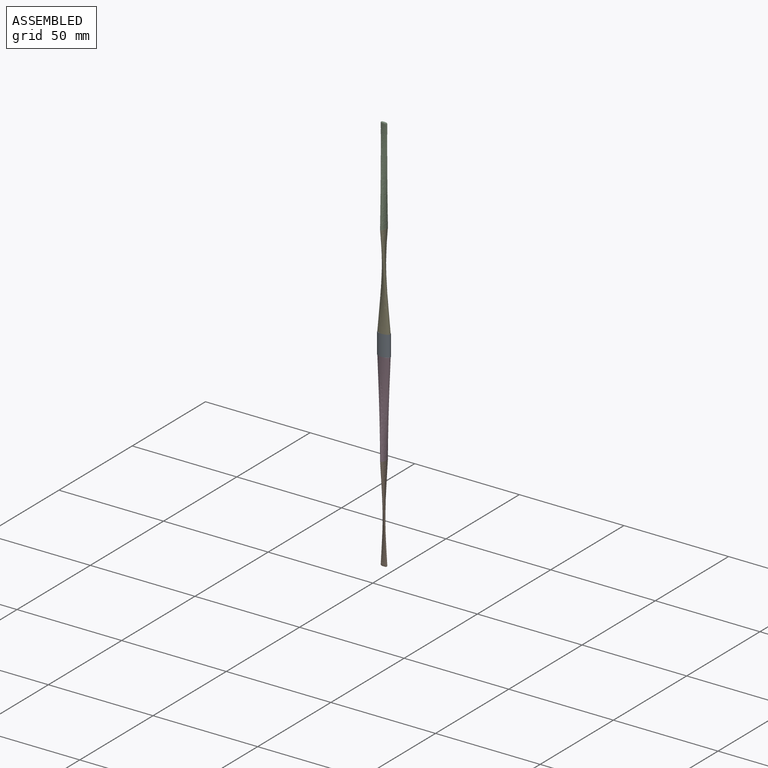
[diagram: assembled view]
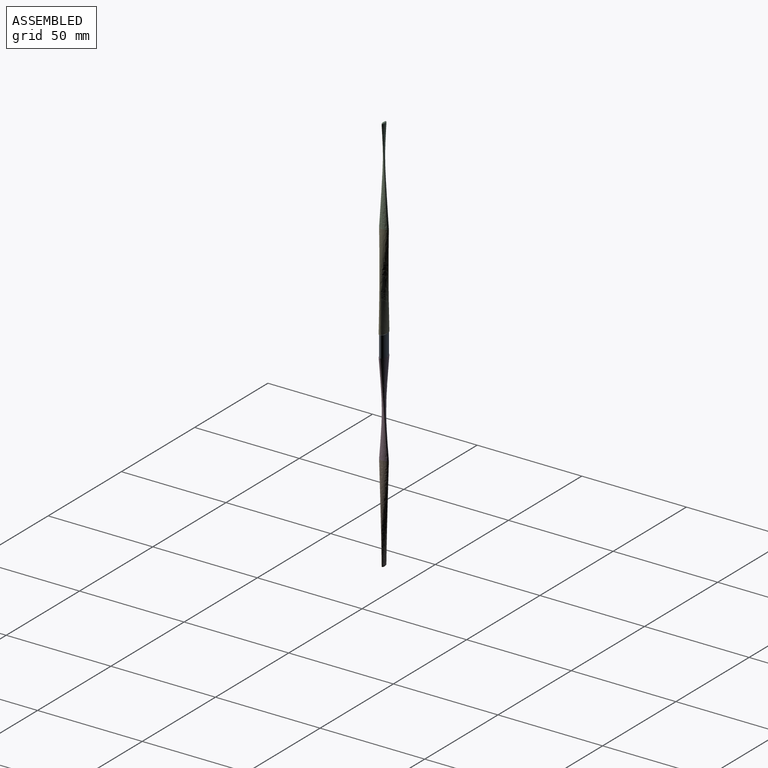
[diagram: assembled view, second angle]
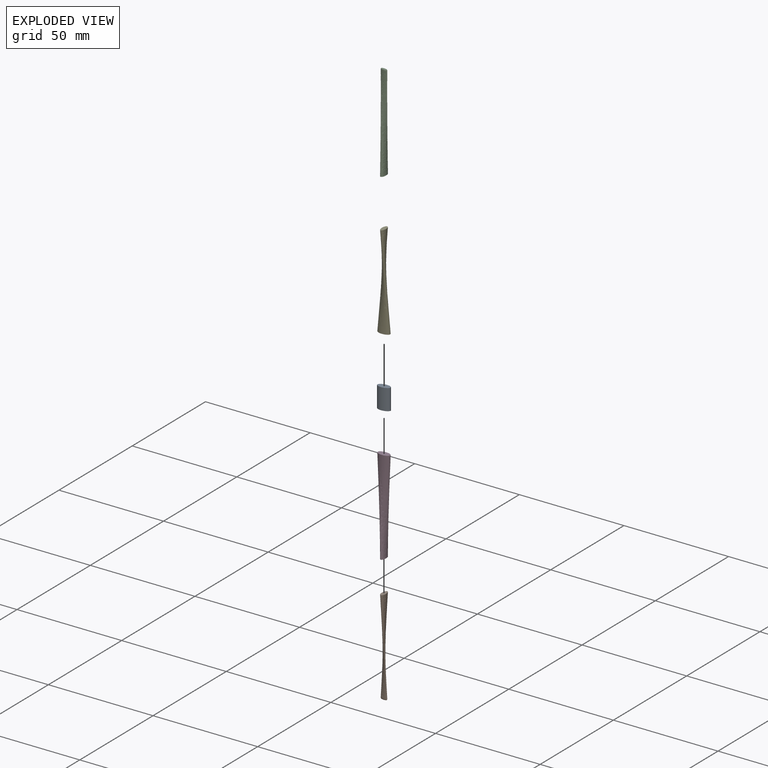
[diagram: exploded view]
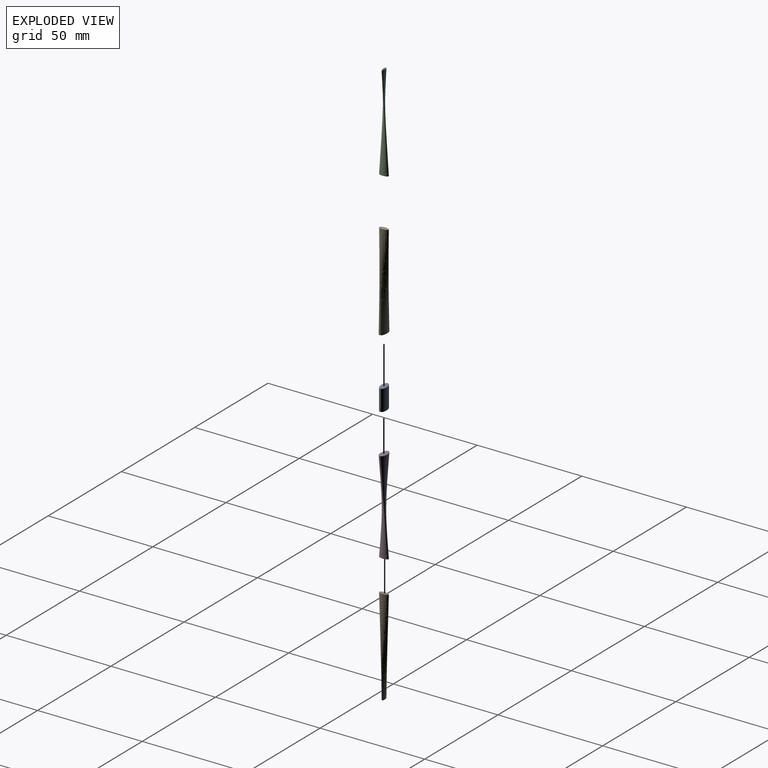
[diagram: exploded view, second angle]
ASSEMBLY  parts=5 mates=4
PART A: 3 faces, bbox 6x3x10 mm
  f0: extruded ~10x5.97mm, area 145.3mm2, adj f1,f2
  f1: plane 5.98x3.05mm, normal (0,0,1), area 14.1mm2, adj f0
  f2: plane 5.98x3.05mm, normal (0,0,-1), area 14.1mm2, adj f0
PART B: 7 faces, bbox 3x4.5x46 mm
  f0: plane 4.5x2mm, normal (0,0,-1), area 7.1mm2, adj f1
  f1: bspline ~45x4.5mm, area 318.7mm2, adj f0,f2
  f2: extruded ~3x1mm, area 3.3mm2, adj f1,f3,f4,f5,f6
  f3: bspline ~1.5x0.59mm, area 0.4mm2, adj f2,f4,f5
  f4: bspline ~2.63x0.69mm, area 0.9mm2, adj f2,f3,f6
  f5: bspline ~2.7x0.71mm, area 0.9mm2, adj f2,f3,f6
  f6: bspline ~1.5x0.59mm, area 0.4mm2, adj f2,f4,f5
PART C: same geometry as B
PART D: 3 faces, bbox 6x4.5x45 mm
  f0: plane 6x3mm, normal (0,0,-1), area 14.1mm2, adj f2
  f1: plane 4.5x2mm, normal (0,0,1), area 7.1mm2, adj f2
  f2: bspline ~45x6mm, area 461.4mm2, adj f0,f1
PART E: same geometry as D
PLACE A t=(19.13,5.36,-63.19)mm
PLACE B rot(axis=(1,0,0),180deg) t=(19.13,8.94,-63.19)mm
PLACE C t=(19.13,8.94,-53.19)mm
PLACE D rot(axis=(1,0,0),180deg) t=(19.13,8.94,-63.19)mm
PLACE E t=(19.13,8.94,-53.19)mm
MATE fastened C.f0 <-> E.f1  axis (0,0,-1) through (19.13,8.94,-8.19)mm
MATE fastened D.f0 <-> A.f2  axis (0,0,1) through (19.13,8.94,-63.19)mm
MATE fastened B.f0 <-> D.f1  axis (0,0,1) through (19.13,8.94,-108.19)mm
MATE fastened E.f0 <-> A.f1  axis (0,0,-1) through (19.13,8.94,-53.19)mm
